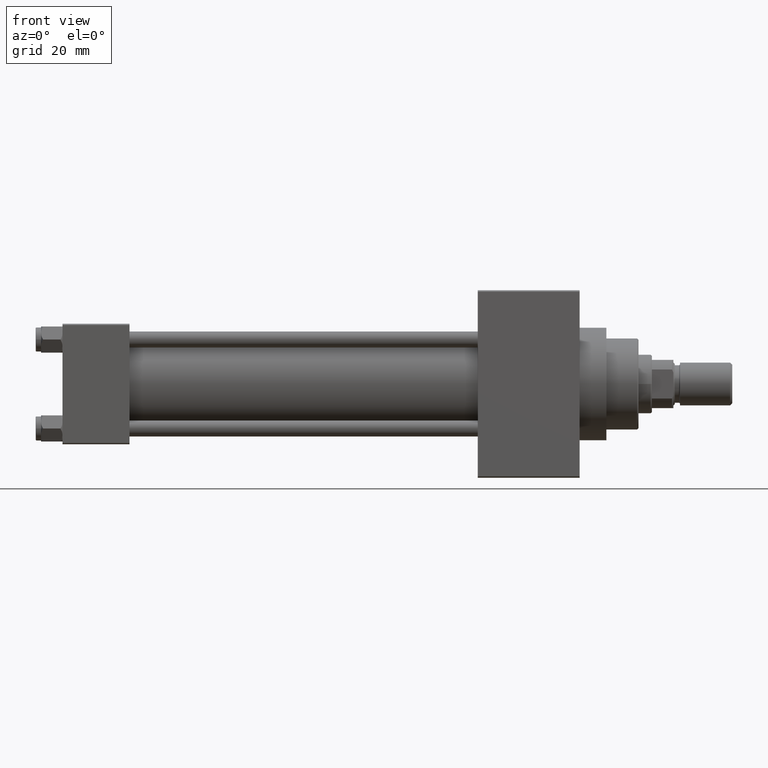
[diagram: clean part render]
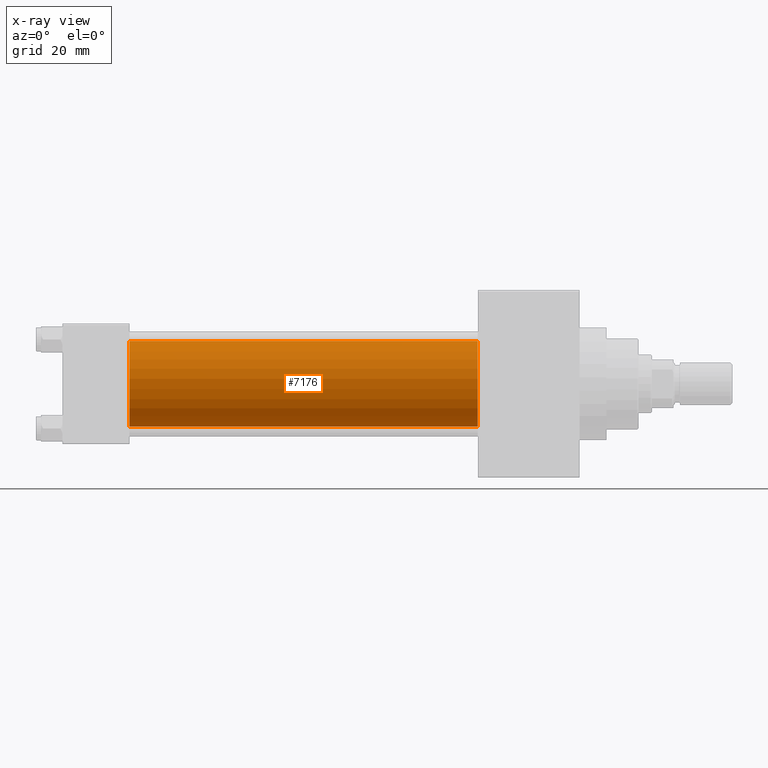
[diagram: x-ray — body ghosted, one internal face saturated and labeled with its STEP entity id]
A machine part, front view, then the same camera in x-ray: the body is ghosted and one INTERNAL B-rep face — a face not visible from any outside direction — is saturated and labeled: STEP entity #7176.
In plain terms, the highlighted cylindrical surface (partial cylindrical patch) has radius 16 mm, axis along (-1, -0, -0).
Its self-contained STEP definition (entity closure, byte-faithful):
#816 = DIRECTION ( 'NONE',  ( -1.000000000000000000, -0.000000000000000000, -0.000000000000000000 ) ) ;
#1768 = CARTESIAN_POINT ( 'NONE',  ( 155.0000000000000000, -2.602085213965210642E-15, 0.000000000000000000 ) ) ;
#2246 = CIRCLE ( 'NONE', #12995, 16.00000000000000000 ) ;
#2628 = CARTESIAN_POINT ( 'NONE',  ( 25.00000000000000000, -6.426503353294456087E-16, -16.00000000000000000 ) ) ;
#2938 = DIRECTION ( 'NONE',  ( 0.000000000000000000, 0.000000000000000000, -1.000000000000000000 ) ) ;
#3526 = ORIENTED_EDGE ( 'NONE', *, *, #20243, .T. ) ;
#3970 = DIRECTION ( 'NONE',  ( -1.000000000000000000, -0.000000000000000000, -0.000000000000000000 ) ) ;
#4614 = EDGE_CURVE ( 'NONE', #30229, #24528, #29066, .T. ) ;
#7176 = ADVANCED_FACE ( 'NONE', ( #9712 ), #34777, .F. ) ;
#7605 = EDGE_CURVE ( 'NONE', #41887, #37702, #2246, .T. ) ;
#7639 = CARTESIAN_POINT ( 'NONE',  ( 25.00000000000000000, -2.602085213965210642E-15, 0.000000000000000000 ) ) ;
#9712 = FACE_OUTER_BOUND ( 'NONE', #12504, .T. ) ;
#12124 = CARTESIAN_POINT ( 'NONE',  ( 155.0000000000000000, -6.426503353294456087E-16, -16.00000000000000000 ) ) ;
#12504 = EDGE_LOOP ( 'NONE', ( #45225, #3526, #40795, #43776 ) ) ;
#12995 = AXIS2_PLACEMENT_3D ( 'NONE', #7639, #25739, #40409 ) ;
#13090 = DIRECTION ( 'NONE',  ( -1.000000000000000000, -0.000000000000000000, -0.000000000000000000 ) ) ;
#13537 = DIRECTION ( 'NONE',  ( 1.000000000000000000, 0.000000000000000000, 0.000000000000000000 ) ) ;
#13966 = CARTESIAN_POINT ( 'NONE',  ( 155.0000000000000000, -2.602085213965210642E-15, 16.00000000000000000 ) ) ;
#18524 = CARTESIAN_POINT ( 'NONE',  ( 155.0000000000000000, -6.426503353294456087E-16, -16.00000000000000000 ) ) ;
#20243 = EDGE_CURVE ( 'NONE', #24528, #37702, #26594, .T. ) ;
#22275 = CARTESIAN_POINT ( 'NONE',  ( 155.0000000000000000, -2.602085213965210642E-15, 16.00000000000000000 ) ) ;
#22627 = EDGE_CURVE ( 'NONE', #30229, #41887, #29740, .T. ) ;
#23374 = VECTOR ( 'NONE', #816, 1000.000000000000000 ) ;
#23773 = AXIS2_PLACEMENT_3D ( 'NONE', #1768, #13090, #45824 ) ;
#24528 = VERTEX_POINT ( 'NONE', #18524 ) ;
#25739 = DIRECTION ( 'NONE',  ( 1.000000000000000000, 0.000000000000000000, 0.000000000000000000 ) ) ;
#26594 = LINE ( 'NONE', #12124, #44843 ) ;
#29066 = CIRCLE ( 'NONE', #34421, 16.00000000000000000 ) ;
#29740 = LINE ( 'NONE', #22275, #23374 ) ;
#30229 = VERTEX_POINT ( 'NONE', #13966 ) ;
#34421 = AXIS2_PLACEMENT_3D ( 'NONE', #39314, #13537, #2938 ) ;
#34777 = CYLINDRICAL_SURFACE ( 'NONE', #23773, 16.00000000000000000 ) ;
#37702 = VERTEX_POINT ( 'NONE', #2628 ) ;
#39314 = CARTESIAN_POINT ( 'NONE',  ( 155.0000000000000000, -2.602085213965210642E-15, 0.000000000000000000 ) ) ;
#40409 = DIRECTION ( 'NONE',  ( 0.000000000000000000, 0.000000000000000000, -1.000000000000000000 ) ) ;
#40795 = ORIENTED_EDGE ( 'NONE', *, *, #7605, .F. ) ;
#41887 = VERTEX_POINT ( 'NONE', #42159 ) ;
#42159 = CARTESIAN_POINT ( 'NONE',  ( 25.00000000000000000, -2.602085213965210642E-15, 16.00000000000000000 ) ) ;
#43776 = ORIENTED_EDGE ( 'NONE', *, *, #22627, .F. ) ;
#44843 = VECTOR ( 'NONE', #3970, 1000.000000000000000 ) ;
#45225 = ORIENTED_EDGE ( 'NONE', *, *, #4614, .T. ) ;
#45824 = DIRECTION ( 'NONE',  ( 0.000000000000000000, 0.000000000000000000, 1.000000000000000000 ) ) ;